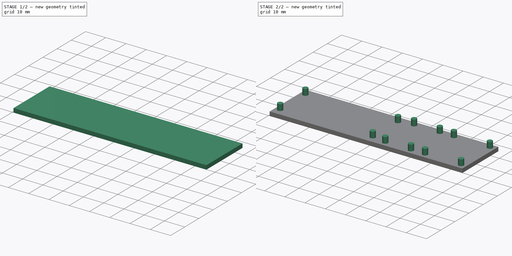
[diagram: build sequence overview — one tinted view per stage of 2, left to right]
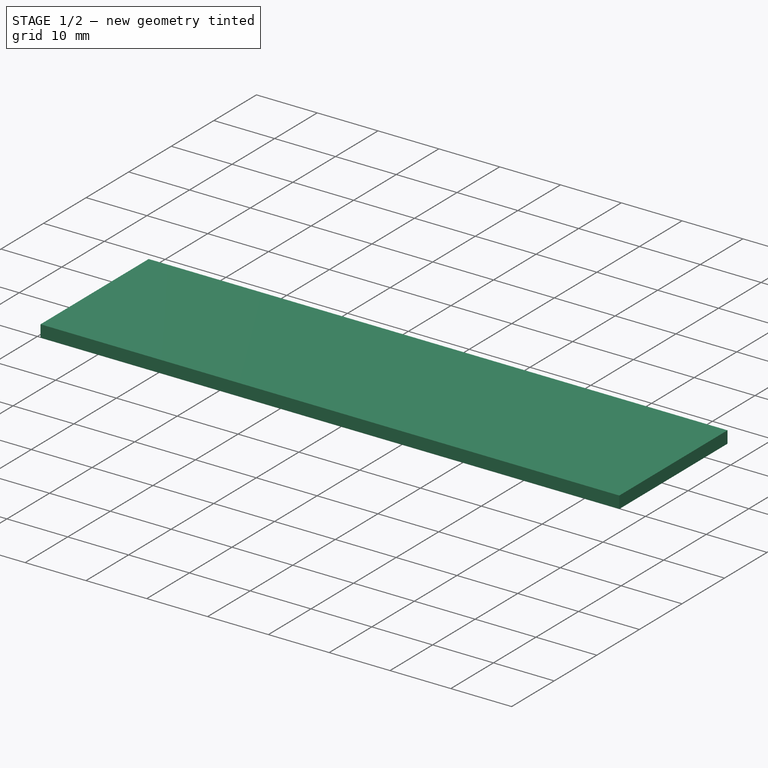
[diagram: stage 1 of 2 — iso view after this stage's code; geometry added in this stage tinted green]
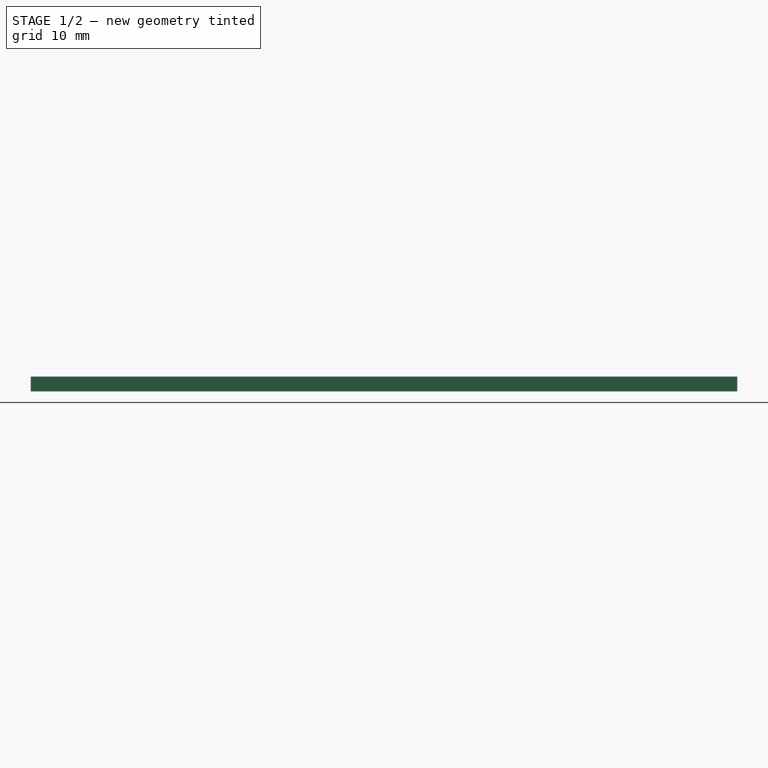
[diagram: stage 1 of 2 — front view after this stage's code; geometry added in this stage tinted green]
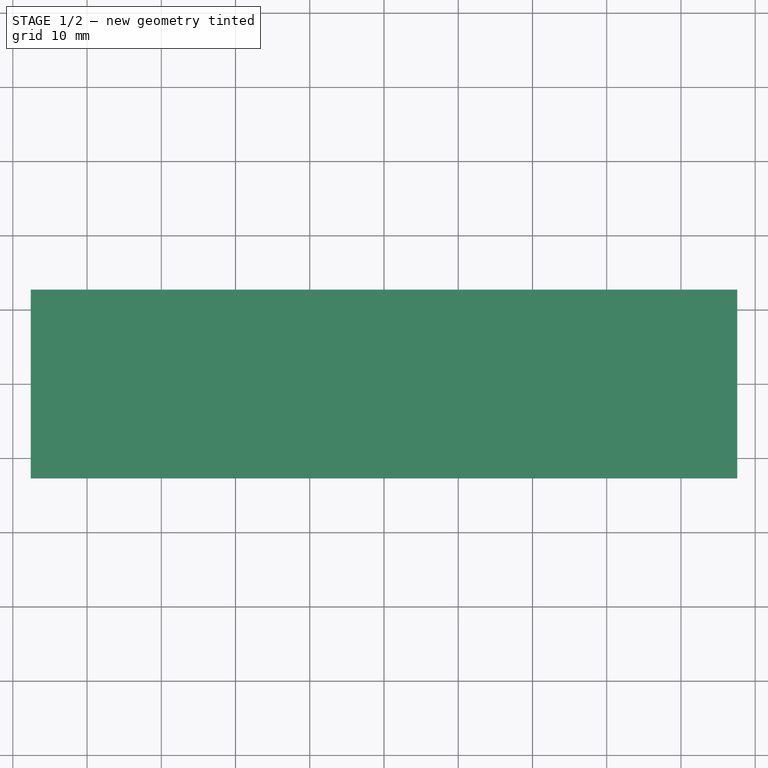
[diagram: stage 1 of 2 — top view after this stage's code; geometry added in this stage tinted green]
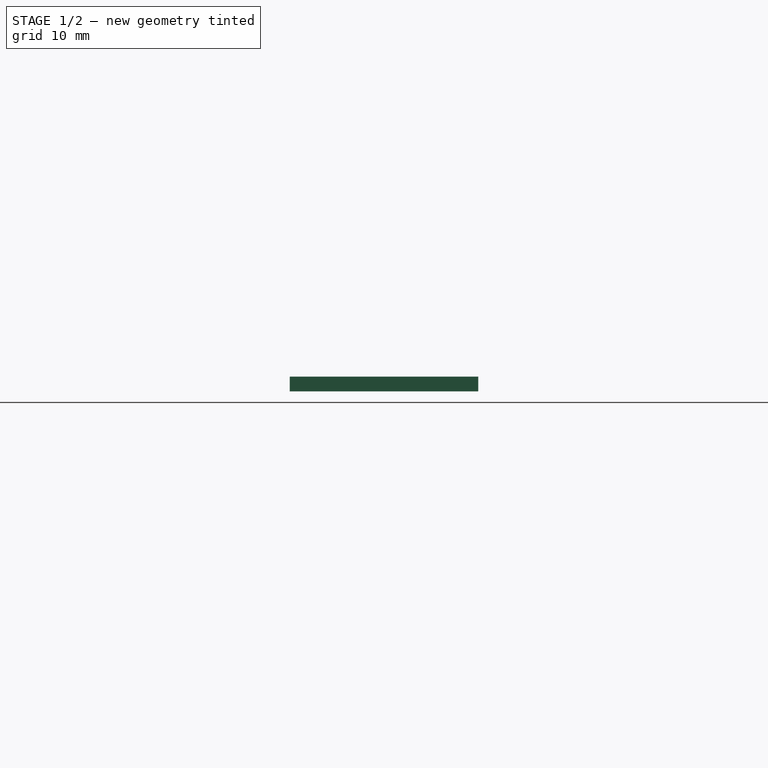
[diagram: stage 1 of 2 — right view after this stage's code; geometry added in this stage tinted green]
FCSTD DOCUMENT  (FreeCAD 0.21R33771 (Git))
Label: electronicsHolder
License: All rights reserved
LicenseURL: http://en.wikipedia.org/wiki/All_rights_reserved
objects: Sketcher::SketchObject×2, PartDesign::Pad×2, PartDesign::Body×1
note: 7 computed .brp shape members not serialized (recipe doc carries the construction recipe); baked Part::Feature solids carry a one-line shape summary decoded from their .brp

FEATURE [Sketcher::SketchObject] Sketch
  FullyConstrained = true
  MapMode = 5
  Support = -> [XY_Plane]
  sketch-geometry (32):
    g0: LineSegment StartX=-47.59 StartY=12.7 StartZ=0 EndX=-47.59 EndY=-12.7 EndZ=0
    g1: LineSegment StartX=-47.59 StartY=-12.7 StartZ=0 EndX=47.59 EndY=-12.7 EndZ=0
    g2: LineSegment StartX=47.59 StartY=-12.7 StartZ=0 EndX=47.59 EndY=12.7 EndZ=0
    g3: LineSegment StartX=47.59 StartY=12.7 StartZ=0 EndX=-47.59 EndY=12.7 EndZ=0
    g4: GeomPoint X=0 Y=0 Z=0
    g5: Circle CenterX=-45.05 CenterY=8.89 CenterZ=0 NormalX=0 NormalY=0 NormalZ=1 AngleXU=0 Radius=1.26
    g6: Circle CenterX=0.67 CenterY=8.89 CenterZ=0 NormalX=0 NormalY=0 NormalZ=1 AngleXU=0 Radius=1.26
    g7: Circle CenterX=-45.05 CenterY=-8.89 CenterZ=0 NormalX=0 NormalY=0 NormalZ=1 AngleXU=0 Radius=1.26
    g8: Circle CenterX=0.67 CenterY=-8.89 CenterZ=0 NormalX=0 NormalY=0 NormalZ=1 AngleXU=0 Radius=1.26
    g9: Circle CenterX=27.4 CenterY=10.16 CenterZ=0 NormalX=0 NormalY=0 NormalZ=1 AngleXU=0 Radius=1.26
    g10: Circle CenterX=27.4 CenterY=-10.16 CenterZ=0 NormalX=0 NormalY=0 NormalZ=1 AngleXU=0 Radius=1.26
    g11: Circle CenterX=45.18 CenterY=10.16 CenterZ=0 NormalX=0 NormalY=0 NormalZ=1 AngleXU=0 Radius=1.26
    g12: Circle CenterX=45.18 CenterY=-10.16 CenterZ=0 NormalX=0 NormalY=0 NormalZ=1 AngleXU=0 Radius=1.26
    g13: Circle CenterX=7.75 CenterY=10.16 CenterZ=0 NormalX=0 NormalY=0 NormalZ=1 AngleXU=0 Radius=1.26
    g14: Circle CenterX=20.45 CenterY=10.16 CenterZ=0 NormalX=0 NormalY=0 NormalZ=1 AngleXU=0 Radius=1.26
    g15: Circle CenterX=7.75 CenterY=-10.16 CenterZ=0 NormalX=0 NormalY=0 NormalZ=1 AngleXU=0 Radius=1.26
    g16: Circle CenterX=20.45 CenterY=-10.16 CenterZ=0 NormalX=0 NormalY=0 NormalZ=1 AngleXU=0 Radius=1.26
    g17: LineSegment StartX=24.99 StartY=12.7 StartZ=0 EndX=24.99 EndY=-12.7 EndZ=0
    g18: LineSegment StartX=24.99 StartY=-12.7 StartZ=0 EndX=47.59 EndY=-12.7 EndZ=0
    g19: LineSegment StartX=47.59 StartY=-12.7 StartZ=0 EndX=47.59 EndY=12.7 EndZ=0
    g20: LineSegment StartX=47.59 StartY=12.7 StartZ=0 EndX=24.99 EndY=12.7 EndZ=0
    g21: GeomPoint X=36.29 Y=0 Z=0
    g22: LineSegment StartX=5.21 StartY=12.7 StartZ=0 EndX=5.21 EndY=-12.7 EndZ=0
    g23: LineSegment StartX=5.21 StartY=-12.7 StartZ=0 EndX=22.99 EndY=-12.7 EndZ=0
    g24: LineSegment StartX=22.99 StartY=-12.7 StartZ=0 EndX=22.99 EndY=12.7 EndZ=0
    g25: LineSegment StartX=22.99 StartY=12.7 StartZ=0 EndX=5.21 EndY=12.7 EndZ=0
    g26: GeomPoint X=14.1 Y=0 Z=0
    g27: LineSegment StartX=-47.59 StartY=11.43 StartZ=0 EndX=-47.59 EndY=-11.43 EndZ=0
    g28: LineSegment StartX=-47.59 StartY=-11.43 StartZ=0 EndX=3.21 EndY=-11.43 EndZ=0
    g29: LineSegment StartX=3.21 StartY=-11.43 StartZ=0 EndX=3.21 EndY=11.43 EndZ=0
    g30: LineSegment StartX=3.21 StartY=11.43 StartZ=0 EndX=-47.59 EndY=11.43 EndZ=0
    g31: GeomPoint X=-22.19 Y=0 Z=0
  constraints (85):
    c: Coincident(g0,g1)
    c: Coincident(g1,g2)
    c: Coincident(g2,g3)
    c: Coincident(g3,g0)
    c: Horizontal(g1)
    c: Horizontal(g3)
    c: Vertical(g0)
    c: Vertical(g2)
    c: Symmetric(g1,g0,g4)
    c: Coincident(g4,g-1)
    c: Equal(g5,g6)
    c: Equal(g6,g7)
    c: Equal(g7,g8)
    c: Equal(g8,g9)
    c: Equal(g9,g10)
    c: Equal(g10,g11)
    c: Equal(g11,g12)
    c: Equal(g12,g13)
    c: Equal(g13,g14)
    c: Equal(g14,g15)
    c: Equal(g15,g16)
    c: Diameter(g5) = 2.52
    c: Horizontal(g12,g10)
    c: Horizontal(g8,g7)
    c: Vertical(g5,g7)
    c: Vertical(g13,g15)
    c: Coincident(g17,g18)
    c: Coincident(g18,g19)
    c: Coincident(g19,g20)
    c: Coincident(g20,g17)
    c: Horizontal(g18)
    c: Vertical(g17)
    c: Vertical(g19)
    c: Symmetric(g18,g17,g21)
    c: PointOnObject(g21,g-1)
    c: DistanceX(g18,g18) = 22.6
    c: DistanceY(g19,g19) = 25.4
    c: Symmetric(g9,g10,g-1)
    c: DistanceY(g10,g9) = 20.32
    c: DistanceX(g10,g12) = 17.78
    c: Symmetric(g10,g11,g21)
    c: Vertical(g12,g11)
    c: Coincident(g22,g23)
    c: Coincident(g23,g24)
    c: Coincident(g24,g25)
    c: Coincident(g25,g22)
    c: Horizontal(g23)
    c: Horizontal(g25)
    c: Vertical(g22)
    c: Vertical(g24)
    c: Symmetric(g23,g22,g26)
    c: PointOnObject(g26,g-1)
    c: DistanceY(g24,g24) = 25.4
    c: DistanceX(g23,g23) = 17.78
    c: Symmetric(g15,g14,g26)
    c: Horizontal(g16,g15)
    c: Vertical(g16,g14)
    c: Horizontal(g13,g14)
    c: DistanceX(g15,g16) = 12.7
    c: DistanceY(g15,g13) = 20.32
    c: Coincident(g27,g28)
    c: Coincident(g28,g29)
    c: Coincident(g29,g30)
    c: Coincident(g30,g27)
    c: Horizontal(g28)
    c: Horizontal(g30)
    c: Vertical(g27)
    c: Vertical(g29)
    c: Symmetric(g28,g27,g31)
    c: PointOnObject(g31,g-1)
    c: DistanceX(g28,g28) = 50.8
    c: DistanceY(g29,g29) = 22.86
    c: Symmetric(g7,g6,g31)
    c: DistanceX(g7,g8) = 45.72
    c: Vertical(g8,g6)
    c: Horizontal(g5,g6)
    c: DistanceY(g7,g5) = 17.78
    c: Vertical(g0,g27)
    c: Horizontal(g20)
    c: DistanceX(g28,g22) = 2
    c: DistanceX(g23,g17) = 2
    c: Vertical(g18,g1)
    c: Horizontal(g24,g2)
    c: DistanceY(g2,g2) = 25.4  'height'
    c: DistanceX(g1,g1) = 95.18  'length'
FEATURE [Sketcher::SketchObject] Sketch001
  FullyConstrained = true
  MapMode = 5
  Support = -> [XY_Plane]
  expr: Constraints[10] = Sketch.Constraints.length
  expr: Constraints[11] = Sketch.Constraints.height
  sketch-geometry (5):
    g0: LineSegment StartX=-47.59 StartY=12.7 StartZ=0 EndX=-47.59 EndY=-12.7 EndZ=0
    g1: LineSegment StartX=-47.59 StartY=-12.7 StartZ=0 EndX=47.59 EndY=-12.7 EndZ=0
    g2: LineSegment StartX=47.59 StartY=-12.7 StartZ=0 EndX=47.59 EndY=12.7 EndZ=0
    g3: LineSegment StartX=47.59 StartY=12.7 StartZ=0 EndX=-47.59 EndY=12.7 EndZ=0
    g4: GeomPoint X=0 Y=0 Z=0
  constraints (12):
    c: Coincident(g0,g1)
    c: Coincident(g1,g2)
    c: Coincident(g2,g3)
    c: Coincident(g3,g0)
    c: Horizontal(g1)
    c: Horizontal(g3)
    c: Vertical(g0)
    c: Vertical(g2)
    c: Symmetric(g1,g0,g4)
    c: Coincident(g4,g-1)
    c: DistanceX(g1,g1) = 95.18
    c: DistanceY(g2,g2) = 25.4
FEATURE [PartDesign::Pad] Pad
  Direction = (0,0,1)
  Length = 2
  Length2 = 10
  Profile = -> Sketch001
  ReferenceAxis = -> Sketch001 [N_Axis]
  Reversed = true
  Type = 0
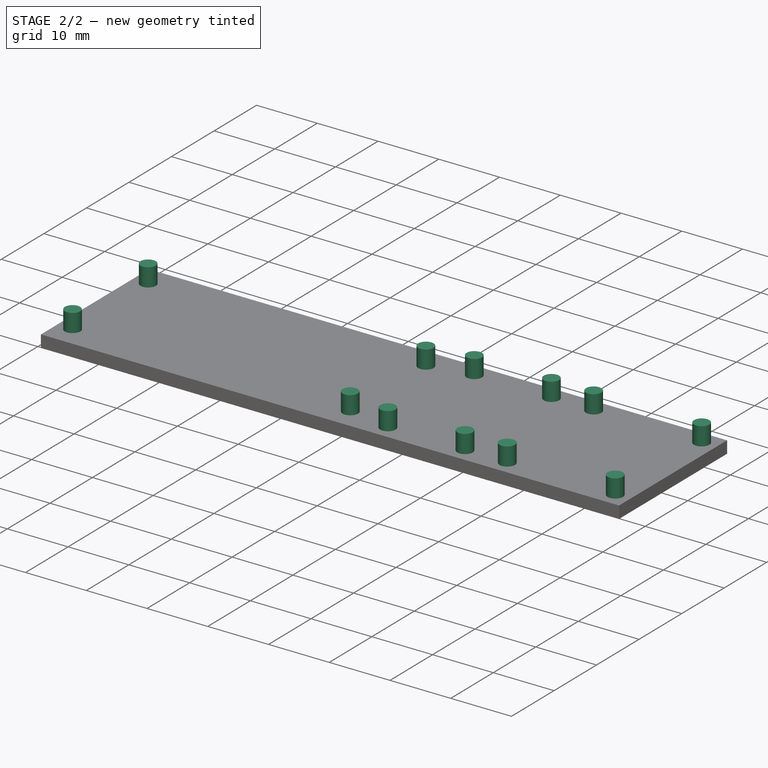
[diagram: stage 2 of 2 — iso view after this stage's code; geometry added in this stage tinted green]
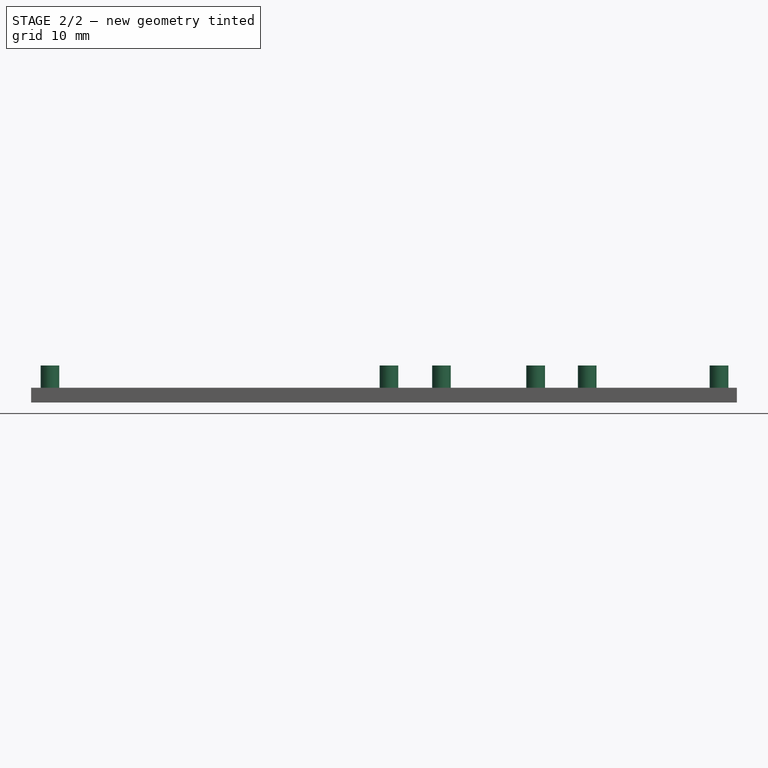
[diagram: stage 2 of 2 — front view after this stage's code; geometry added in this stage tinted green]
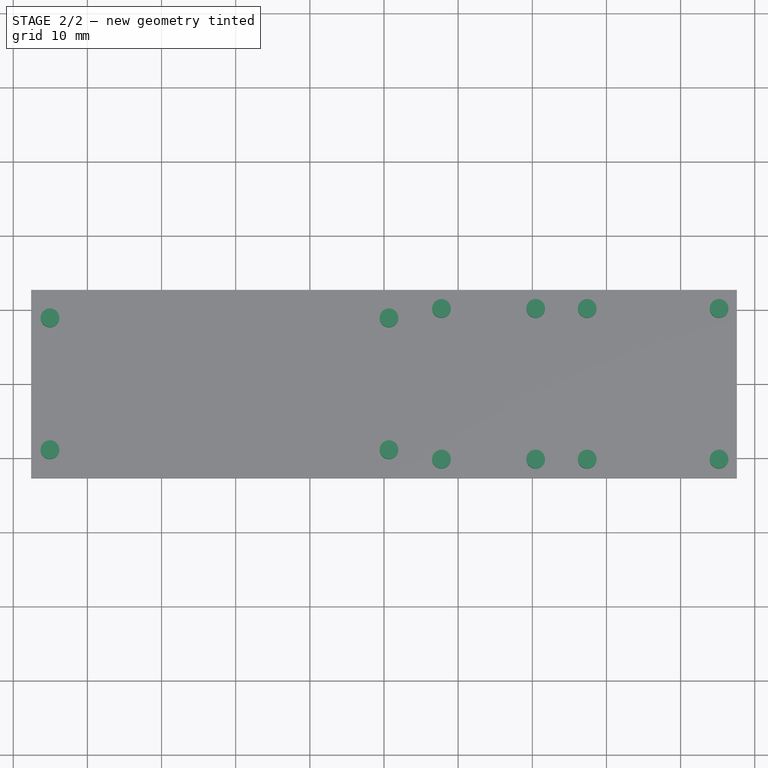
[diagram: stage 2 of 2 — top view after this stage's code; geometry added in this stage tinted green]
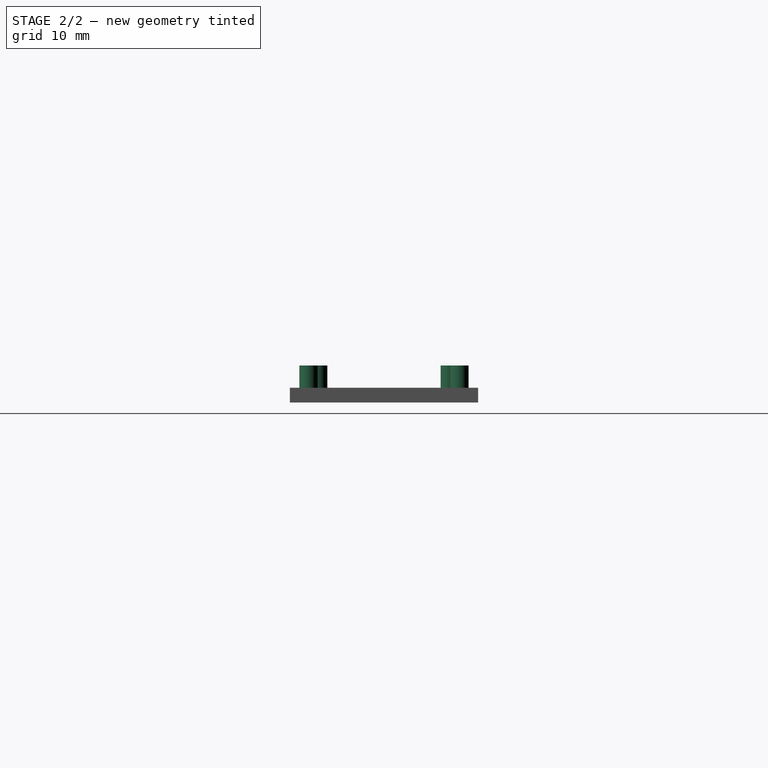
[diagram: stage 2 of 2 — right view after this stage's code; geometry added in this stage tinted green]
FEATURE [PartDesign::Pad] Pad001
  BaseFeature = -> Pad
  Direction = (0,0,1)
  Length = 3
  Length2 = 10
  Profile = -> Sketch
  ReferenceAxis = -> Sketch [N_Axis]
  Type = 0
FEATURE [PartDesign::Body] Body
  Group = -> [Sketch,Sketch001,Pad,Pad001]
  Origin = -> Origin
  Tip = -> Pad001
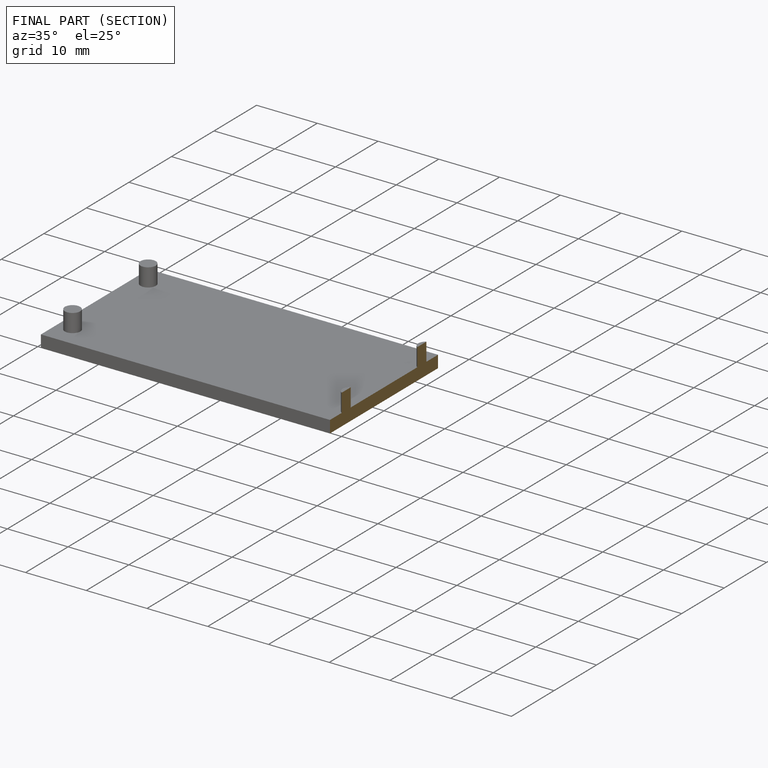
[diagram: finished part — half-section view (interior)]
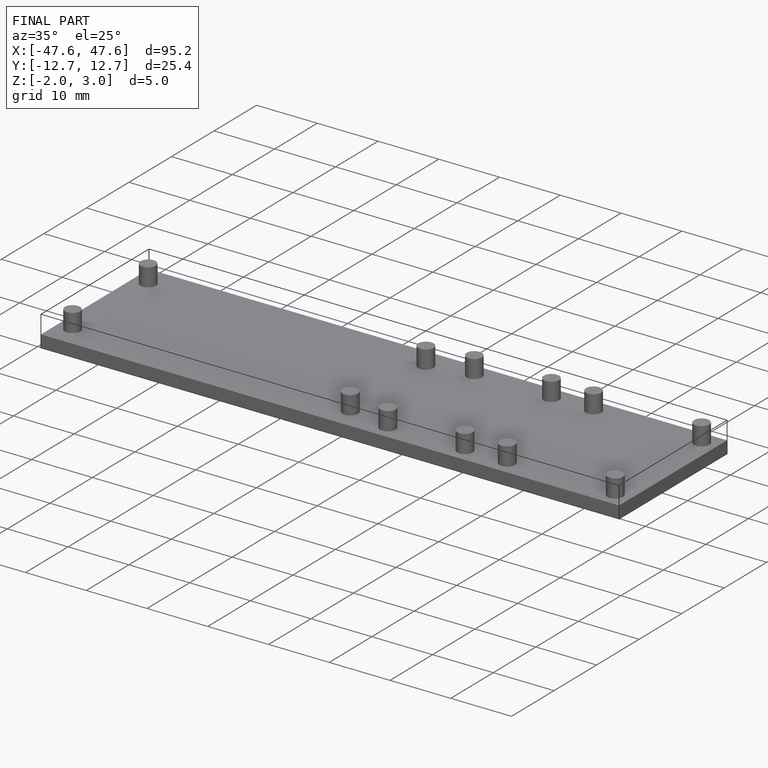
[diagram: finished part — iso view with bounding-box wireframe]
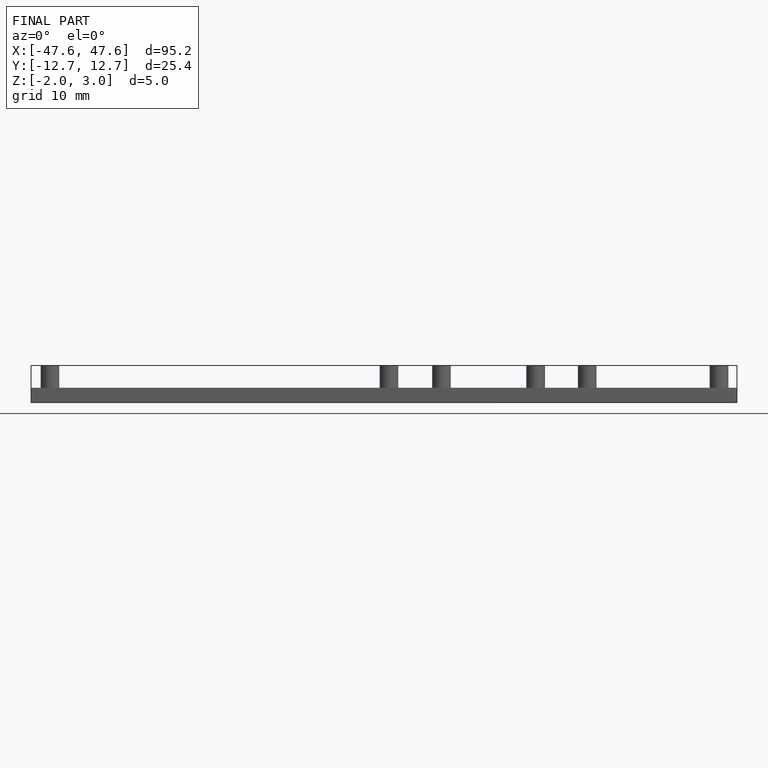
[diagram: finished part — front view with bounding-box wireframe]
